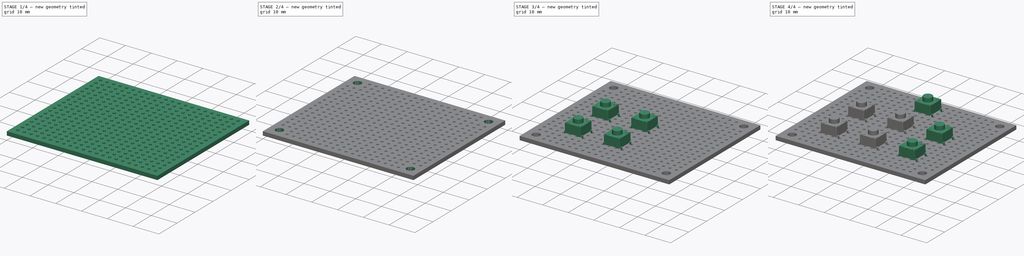
[diagram: build sequence overview — one tinted view per stage of 4, left to right]
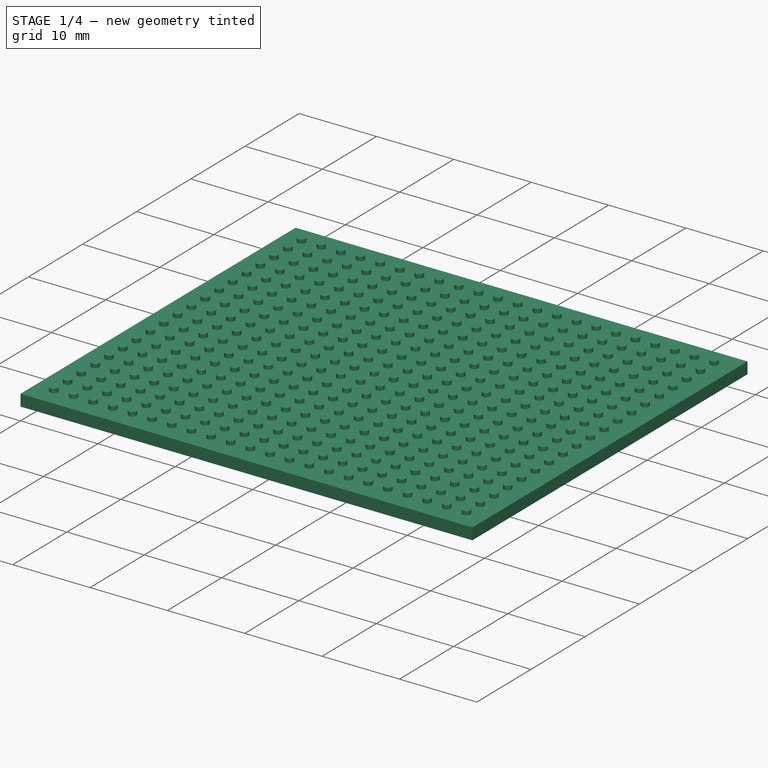
[diagram: stage 1 of 4 — iso view after this stage's code; geometry added in this stage tinted green]
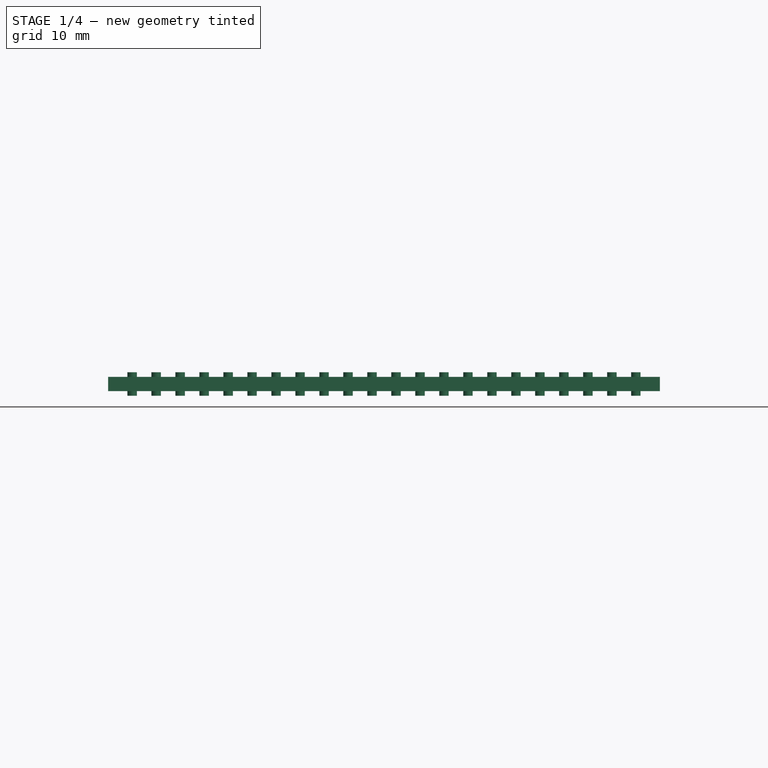
[diagram: stage 1 of 4 — front view after this stage's code; geometry added in this stage tinted green]
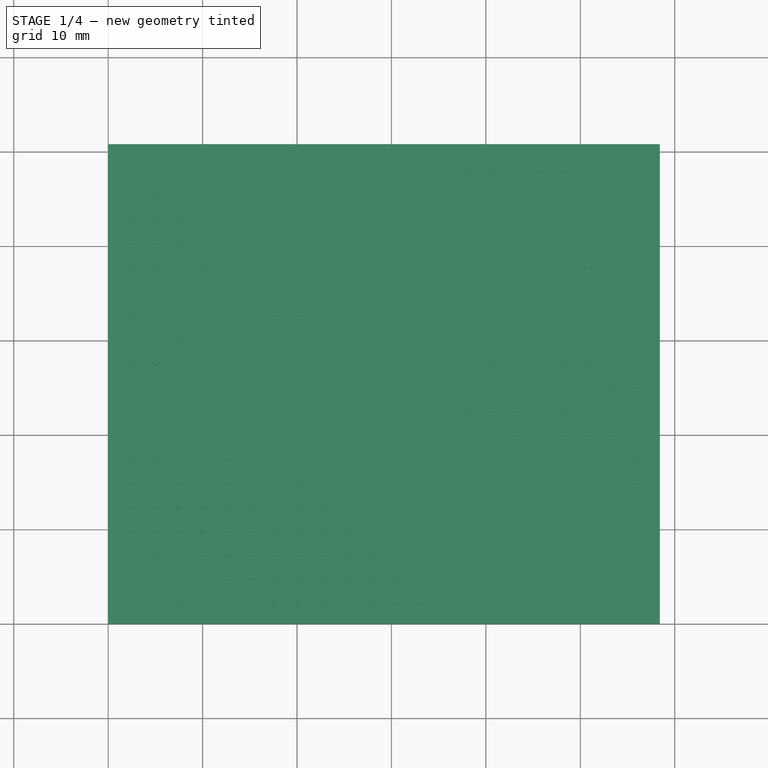
[diagram: stage 1 of 4 — top view after this stage's code; geometry added in this stage tinted green]
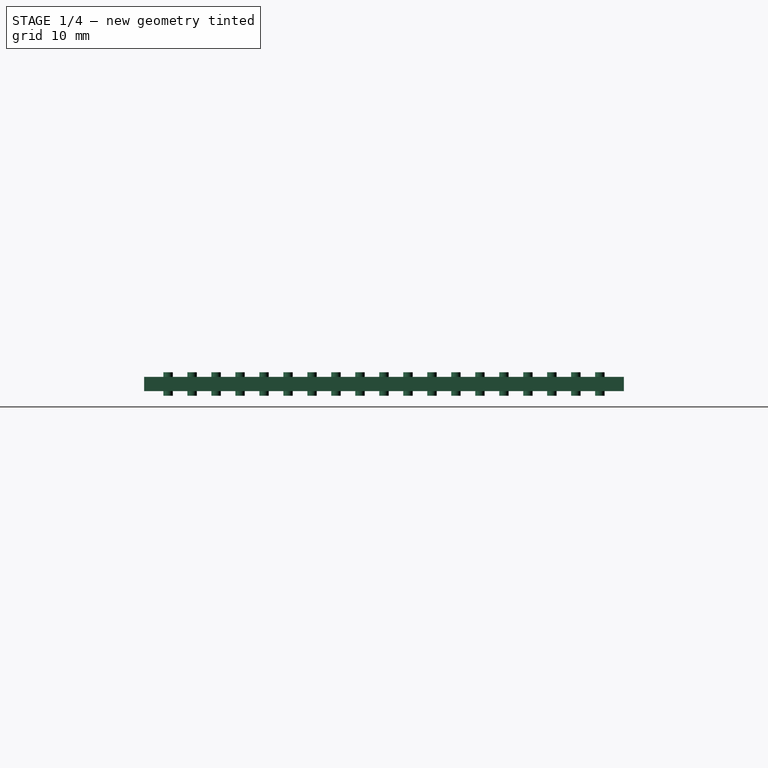
[diagram: stage 1 of 4 — right view after this stage's code; geometry added in this stage tinted green]
FCSTD DOCUMENT  (FreeCAD 0.14R3692 (Git))
Label: Keypad
License: CC-BY 3.0
LicenseURL: http://creativecommons.org/licenses/by/3.0/
objects: Part::Feature×7, Part::Compound×7, Sketcher::SketchObject×2, Part::Box×1, Part::Cylinder×1, Part::FeaturePython×1, Part::Cut×1, PartDesign::Pad×1, PartDesign::Pocket×1
note: 24 computed .brp shape members not serialized (recipe doc carries the construction recipe); baked Part::Feature solids carry a one-line shape summary decoded from their .brp

FEATURE [Part::Box] Box  label="BoardCube"
  Height = 1.5
  Length = 58.42
  Width = 50.8
FEATURE [Part::Cylinder] Cylinder  label="HoleCylinder"
  Angle = 360
  Height = 2.5
  Placement = pos=(2.54,2.54,-0.5) rot=(0,0,1;0rad)
  Radius = 0.5
FEATURE [Part::FeaturePython] Array  label="HoleArray"  # Draft array (typed FeaturePython)
  Angle = 360
  ArrayType = 0
  Axis = (0,0,1)
  Base = -> Cylinder
  Center = (0,0,0)
  IntervalX = (2.54,0,0)
  IntervalY = (0,2.54,0)
  IntervalZ = (0,0,1)
  NumberPolar = 1
  NumberX = 22
  NumberY = 19
  NumberZ = 1
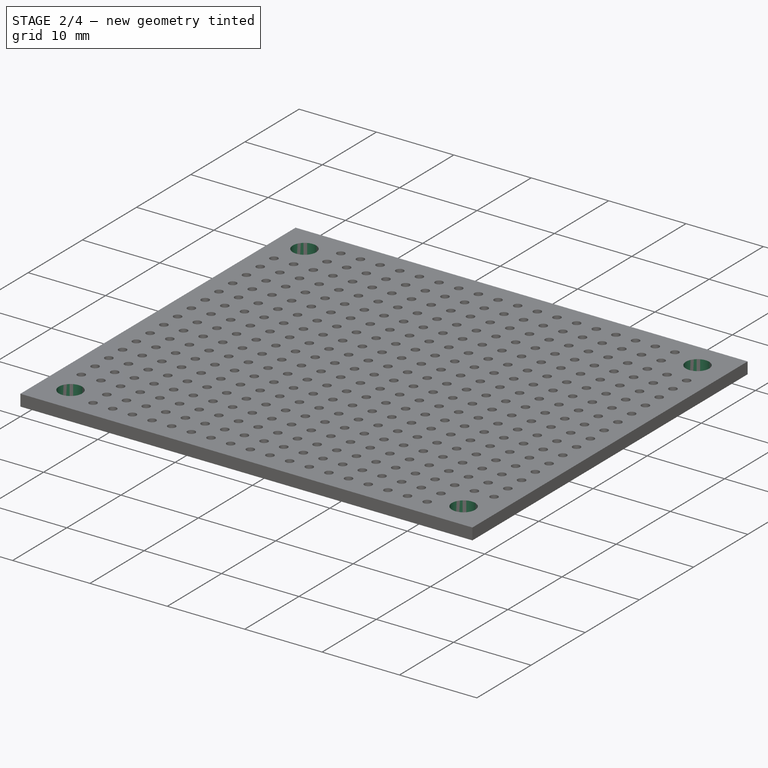
[diagram: stage 2 of 4 — iso view after this stage's code; geometry added in this stage tinted green]
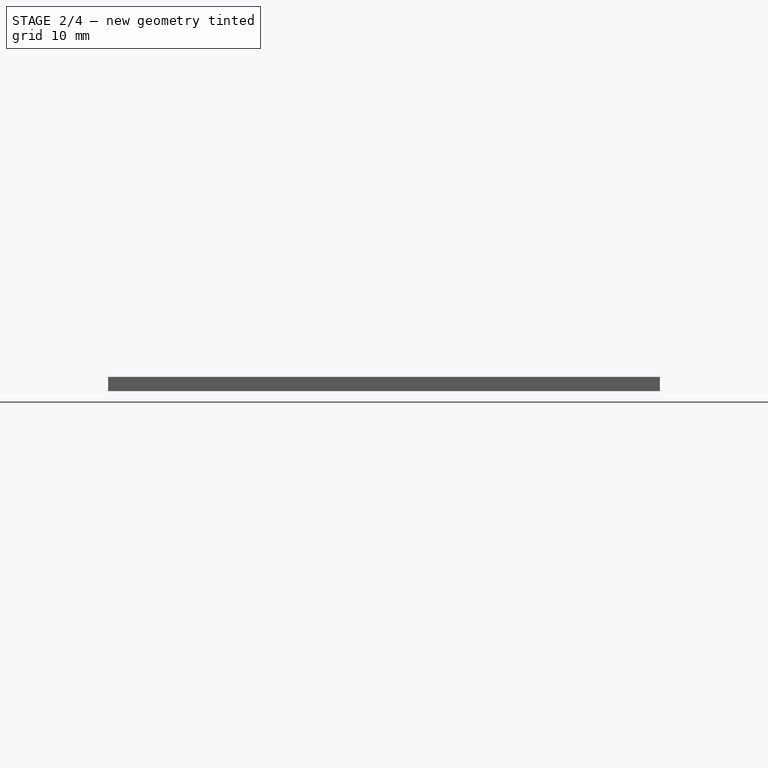
[diagram: stage 2 of 4 — front view after this stage's code; geometry added in this stage tinted green]
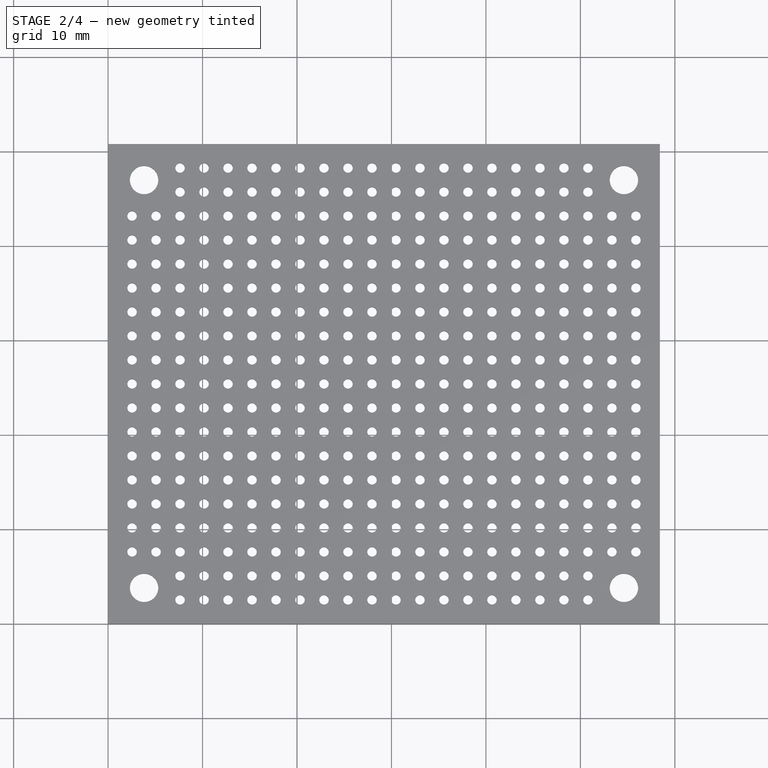
[diagram: stage 2 of 4 — top view after this stage's code; geometry added in this stage tinted green]
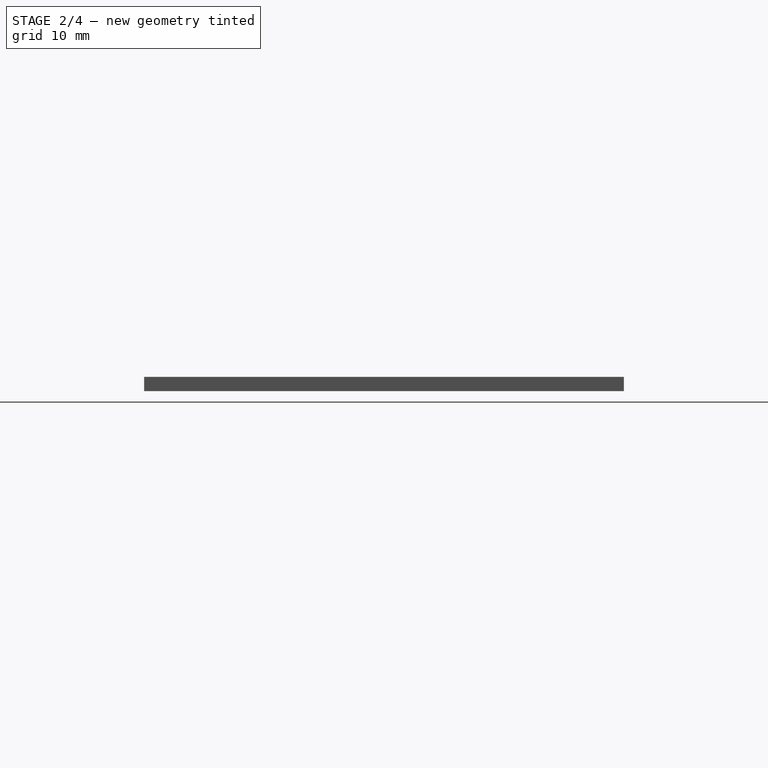
[diagram: stage 2 of 4 — right view after this stage's code; geometry added in this stage tinted green]
FEATURE [Part::Cut] Cut  label="BoardCut"
  Base = -> Box
  Tool = -> Array
FEATURE [Part::Feature] Part__Feature006  label="ConnectorFusion002"
  Placement = pos=(12.7,0,1.5) rot=(0,0,1;0rad)
  shape: bbox 7.62 x 13.65 x 9.1 mm, 63 faces (baked)
FEATURE [Sketcher::SketchObject] Sketch  label="CornerSketch"
  Placement = pos=(0,0,1.5) rot=(0,0,1;0rad)
  Support = -> Cut [Face3]
  sketch-geometry (16):
    g0: LineSegment StartX=1.27 StartY=6.35 StartZ=0 EndX=6.35 EndY=6.35 EndZ=0
    g1: LineSegment StartX=6.35 StartY=6.35 StartZ=0 EndX=6.35 EndY=1.27 EndZ=0
    g2: LineSegment StartX=6.35 StartY=1.27 StartZ=0 EndX=1.27 EndY=1.27 EndZ=0
    g3: LineSegment StartX=1.27 StartY=1.27 StartZ=0 EndX=1.27 EndY=6.35 EndZ=0
    g4: LineSegment StartX=1.27 StartY=49.53 StartZ=0 EndX=6.35 EndY=49.53 EndZ=0
    g5: LineSegment StartX=6.35 StartY=49.53 StartZ=0 EndX=6.35 EndY=44.45 EndZ=0
    g6: LineSegment StartX=6.35 StartY=44.45 StartZ=0 EndX=1.27 EndY=44.45 EndZ=0
    g7: LineSegment StartX=1.27 StartY=44.45 StartZ=0 EndX=1.27 EndY=49.53 EndZ=0
    g8: LineSegment StartX=57.15 StartY=1.27 StartZ=0 EndX=52.07 EndY=1.27 EndZ=0
    g9: LineSegment StartX=52.07 StartY=1.27 StartZ=0 EndX=52.07 EndY=6.35 EndZ=0
    g10: LineSegment StartX=52.07 StartY=6.35 StartZ=0 EndX=57.15 EndY=6.35 EndZ=0
    g11: LineSegment StartX=57.15 StartY=6.35 StartZ=0 EndX=57.15 EndY=1.27 EndZ=0
    g12: LineSegment StartX=52.07 StartY=49.53 StartZ=0 EndX=57.15 EndY=49.53 EndZ=0
    g13: LineSegment StartX=57.15 StartY=49.53 StartZ=0 EndX=57.15 EndY=44.45 EndZ=0
    g14: LineSegment StartX=57.15 StartY=44.45 StartZ=0 EndX=52.07 EndY=44.45 EndZ=0
    g15: LineSegment StartX=52.07 StartY=44.45 StartZ=0 EndX=52.07 EndY=49.53 EndZ=0
  constraints (48):
    c: Coincident(g0,g1)
    c: Coincident(g1,g2)
    c: Coincident(g2,g3)
    c: Coincident(g3,g0)
    c: Horizontal(g0)
    c: Horizontal(g2)
    c: Vertical(g1)
    c: Vertical(g3)
    c: DistanceX(g2) = -5.08
    c: Equal(g1,g2)
    c: DistanceX(g-1,g2) = 1.27
    c: DistanceY(g-1,g2) = 1.27
    c: Coincident(g4,g5)
    c: Coincident(g5,g6)
    c: Coincident(g6,g7)
    c: Coincident(g7,g4)
    c: Horizontal(g4)
    c: Horizontal(g6)
    c: Vertical(g5)
    c: Vertical(g7)
    c: Equal(g6,g5)
    c: Equal(g5,g2)
    c: DistanceX(g-1,g6) = 1.27
    c: DistanceY(g6,g0) = -38.1
    c: Coincident(g8,g9)
    c: Coincident(g9,g10)
    c: Coincident(g10,g11)
    c: Coincident(g11,g8)
    c: Horizontal(g8)
    c: Horizontal(g10)
    c: Vertical(g9)
    c: Vertical(g11)
    c: Equal(g8,g11)
    c: Equal(g11,g2)
    c: DistanceX(g8,g1) = -45.72
    c: DistanceY(g-1,g8) = 1.27
    c: Coincident(g12,g13)
    c: Coincident(g13,g14)
    c: Coincident(g14,g15)
    c: Coincident(g15,g12)
    c: Horizontal(g12)
    c: Horizontal(g14)
    c: Vertical(g13)
    c: Vertical(g15)
    c: Equal(g14,g13)
    c: Equal(g13,g2)
    c: DistanceX(g14,g5) = -45.72
    c: DistanceY(g14,g9) = -38.1
FEATURE [PartDesign::Pad] Pad  label="CornerPad"
  Length = 1.5
  Length2 = 100
  Reversed = true
  Sketch = -> Sketch
  Type = 0
FEATURE [Sketcher::SketchObject] Sketch001  label="CornerHolesSketch001"
  Placement = pos=(0,0,1.5) rot=(0,0,1;0rad)
  Support = -> Pad [Face5]
  sketch-geometry (4):
    g0: Circle CenterX=3.81 CenterY=3.81 CenterZ=0 NormalX=0 NormalY=0 NormalZ=1 Radius=1.5
    g1: Circle CenterX=54.61 CenterY=3.81 CenterZ=0 NormalX=0 NormalY=0 NormalZ=1 Radius=1.5
    g2: Circle CenterX=54.61 CenterY=46.99 CenterZ=0 NormalX=0 NormalY=0 NormalZ=1 Radius=1.5
    g3: Circle CenterX=3.81 CenterY=46.99 CenterZ=0 NormalX=0 NormalY=0 NormalZ=1 Radius=1.5
  constraints (12):
    c: Radius(g0) = 1.5
    c: DistanceX(g-1,g0) = 3.81
    c: DistanceY(g-1,g0) = 3.81
    c: Equal(g3,g2)
    c: Equal(g2,g1)
    c: Equal(g1,g0)
    c: DistanceX(g1,g0) = -50.8
    c: DistanceY(g1,g2) = 43.18
    c: DistanceX(g2,g3) = -50.8
    c: DistanceY(g0,g3) = 43.18
    c: DistanceX(g-1,g3) = 3.81
    c: DistanceY(g-1,g1) = 3.81
FEATURE [PartDesign::Pocket] Pocket  label="CornerHolesPocket"
  Length = 5
  Sketch = -> Sketch001
  Type = 0
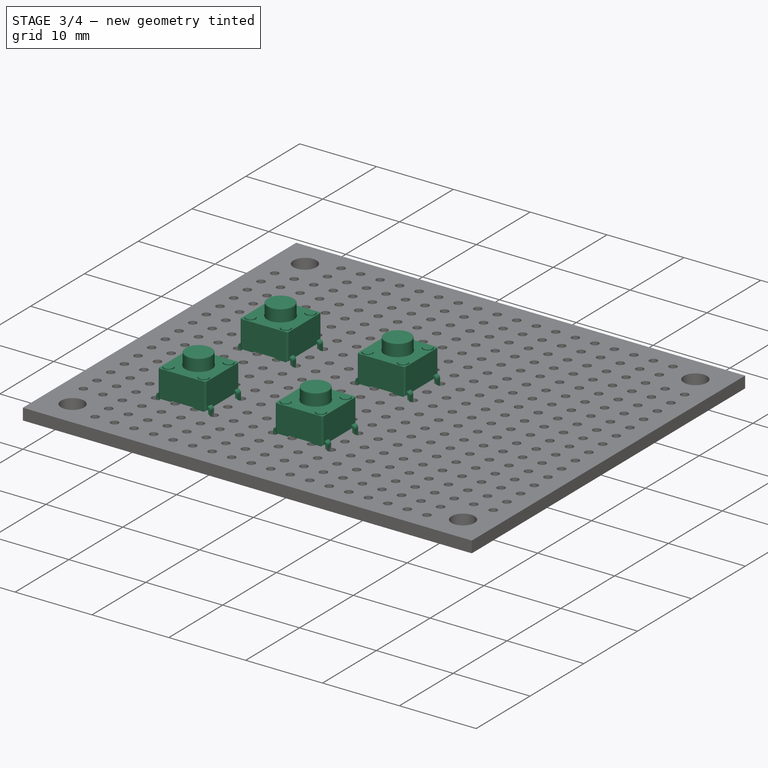
[diagram: stage 3 of 4 — iso view after this stage's code; geometry added in this stage tinted green]
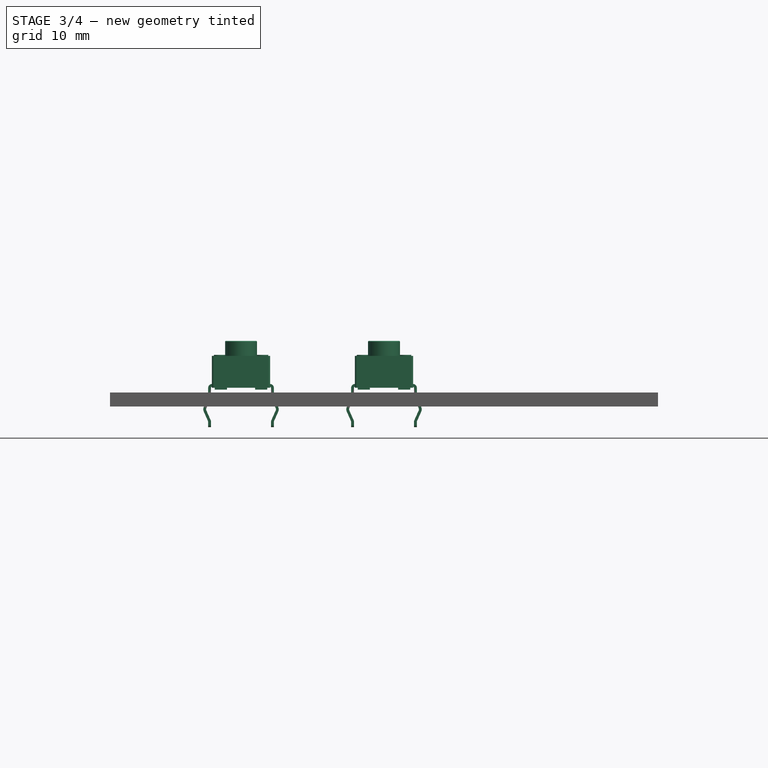
[diagram: stage 3 of 4 — front view after this stage's code; geometry added in this stage tinted green]
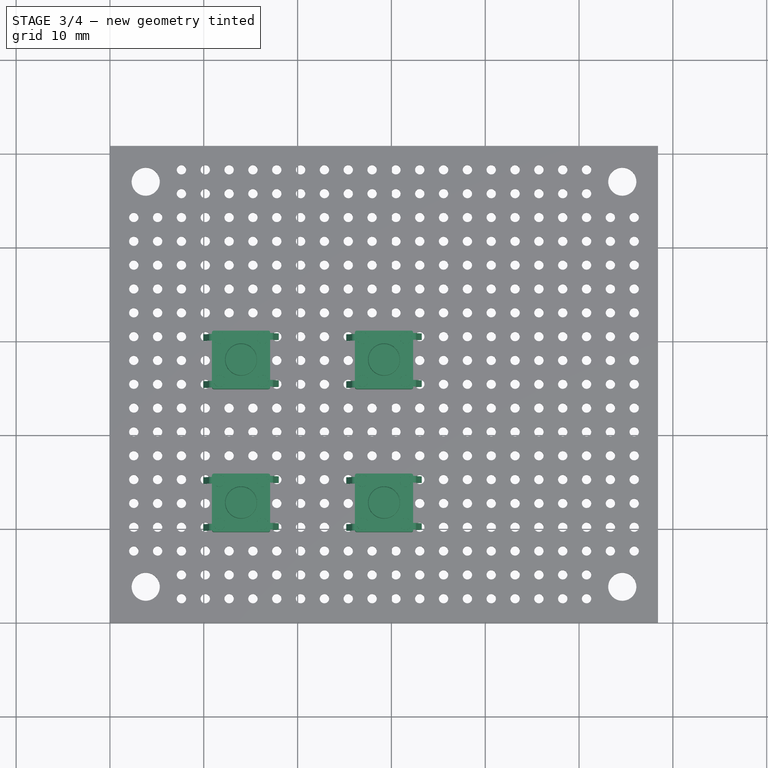
[diagram: stage 3 of 4 — top view after this stage's code; geometry added in this stage tinted green]
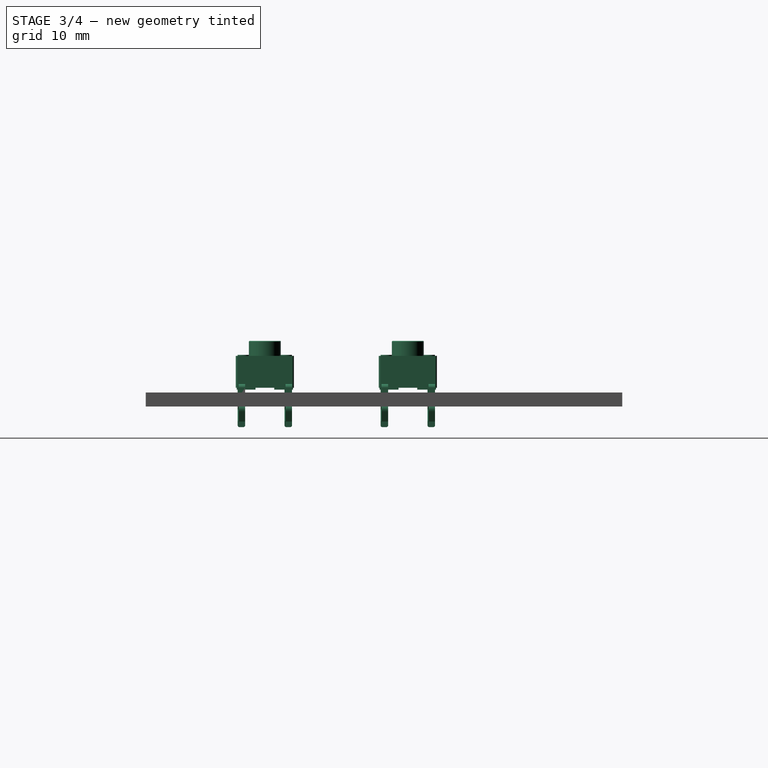
[diagram: stage 3 of 4 — right view after this stage's code; geometry added in this stage tinted green]
FEATURE [Part::Compound] Compound003  label="PushButton003"
  Links = -> [Part__Feature,Part__Feature001,Part__Feature005,Part__Feature004,Part__Feature003,Part__Feature002]
  Placement = pos=(13.97,27.94,2) rot=(0,0,1;0rad)
FEATURE [Part::Compound] Compound004  label="PushButton004"
  Links = -> [Part__Feature,Part__Feature001,Part__Feature005,Part__Feature004,Part__Feature003,Part__Feature002]
  Placement = pos=(29.21,12.7,2) rot=(0,0,1;0rad)
FEATURE [Part::Compound] Compound005  label="PushButton005"
  Links = -> [Part__Feature,Part__Feature001,Part__Feature005,Part__Feature004,Part__Feature003,Part__Feature002]
  Placement = pos=(29.21,27.94,2) rot=(0,0,1;0rad)
FEATURE [Part::Compound] Compound006  label="PushButton006"
  Links = -> [Part__Feature,Part__Feature001,Part__Feature005,Part__Feature004,Part__Feature003,Part__Feature002]
  Placement = pos=(13.97,12.7,2) rot=(0,0,1;0rad)
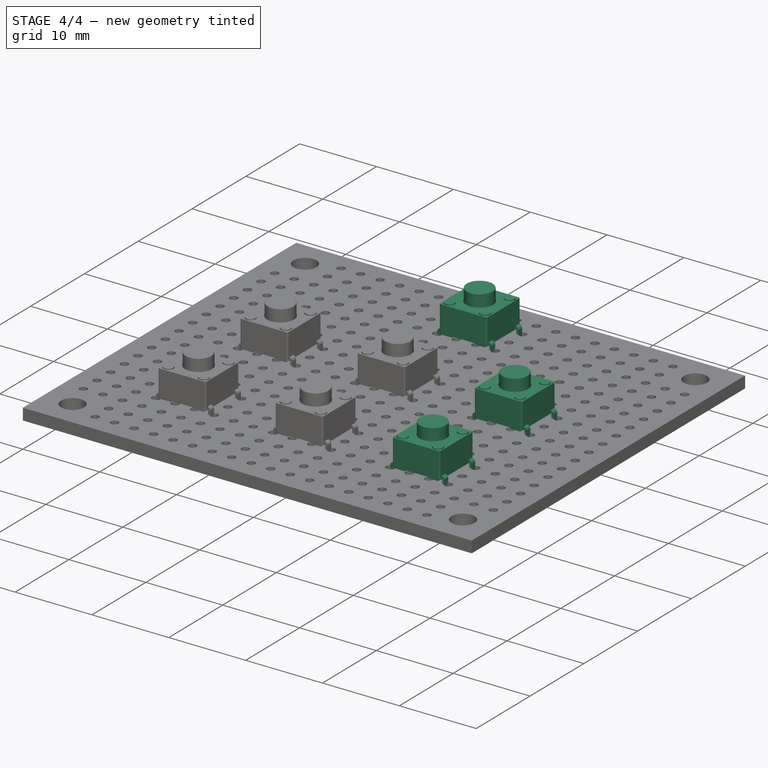
[diagram: stage 4 of 4 — iso view after this stage's code; geometry added in this stage tinted green]
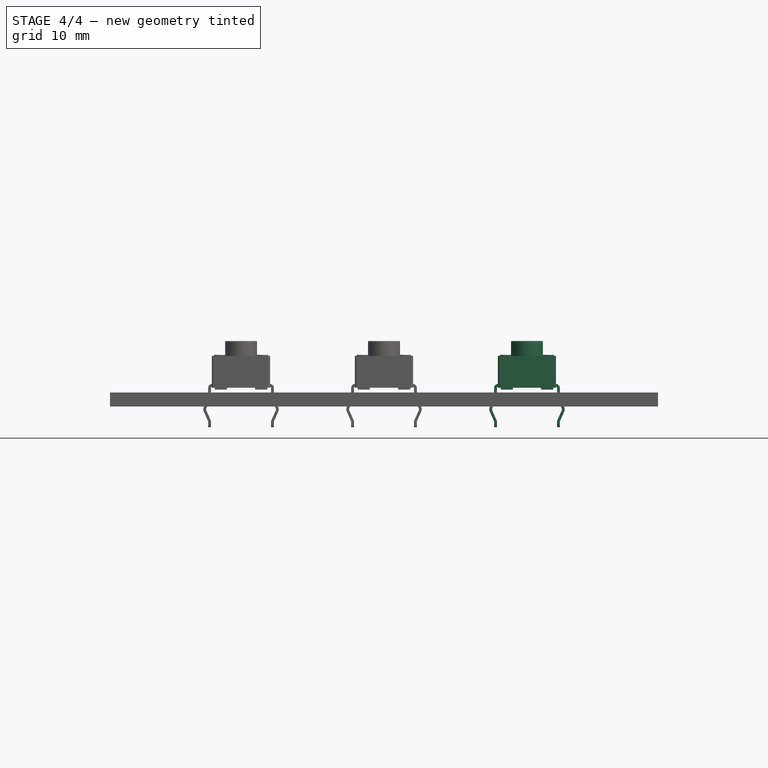
[diagram: stage 4 of 4 — front view after this stage's code; geometry added in this stage tinted green]
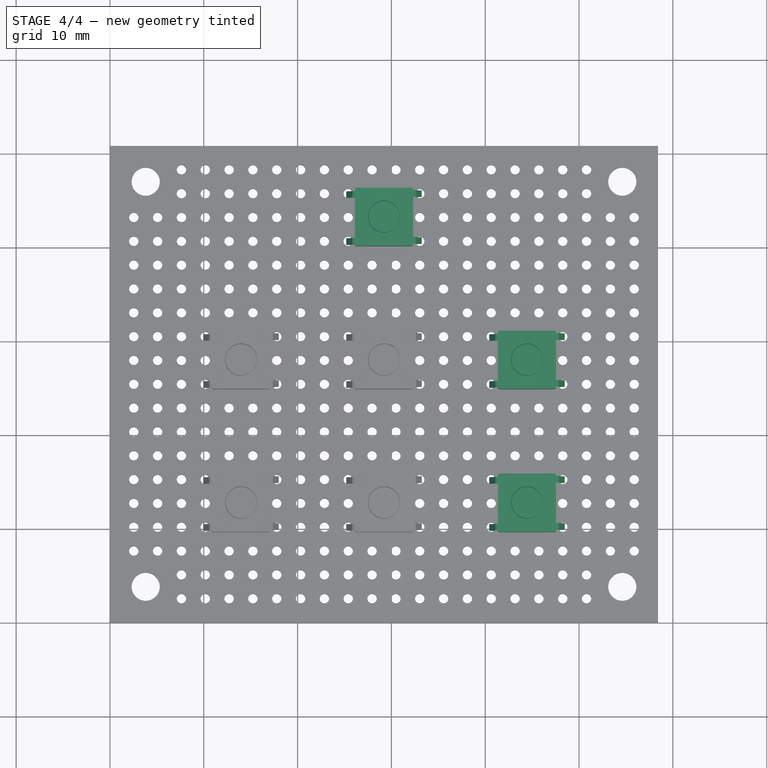
[diagram: stage 4 of 4 — top view after this stage's code; geometry added in this stage tinted green]
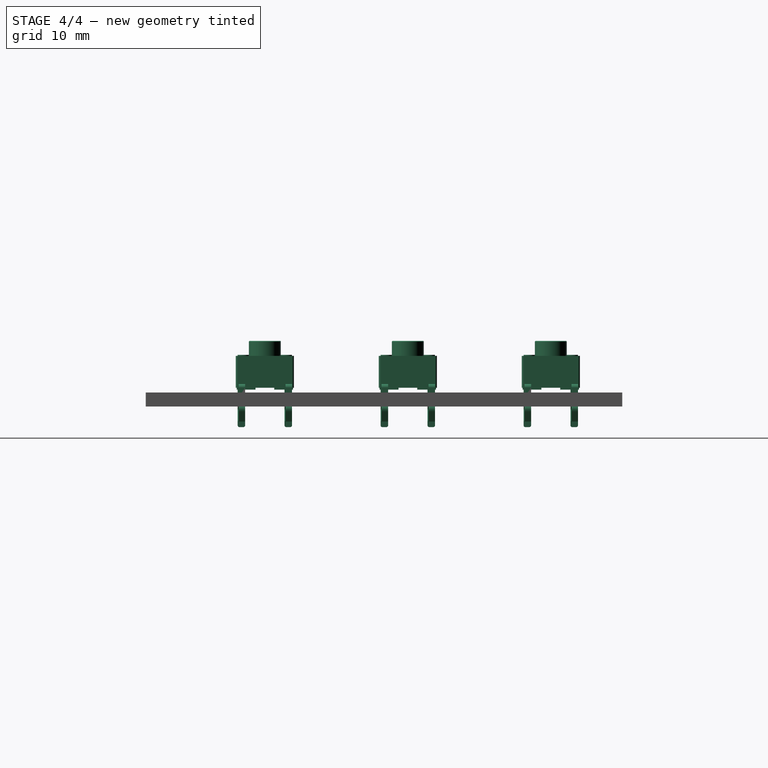
[diagram: stage 4 of 4 — right view after this stage's code; geometry added in this stage tinted green]
FEATURE [Part::Feature] Part__Feature  label="pushbutton-mini"
  shape: bbox 6.2 x 6.2 x 5.2 mm, 41 faces (baked)
FEATURE [Part::Feature] Part__Feature001  label="pushbutton-mini001"
  shape: bbox 0.922 x 0.7 x 4.6 mm, 20 faces (baked)
FEATURE [Part::Feature] Part__Feature002  label="pushbutton-mini002"
  shape: bbox 0.922 x 0.7 x 4.6 mm, 20 faces (baked)
FEATURE [Part::Feature] Part__Feature003  label="pushbutton-mini003"
  shape: bbox 0.922 x 0.7 x 4.6 mm, 20 faces (baked)
FEATURE [Part::Feature] Part__Feature004  label="pushbutton-mini004"
  shape: bbox 0.922 x 0.7 x 4.6 mm, 20 faces (baked)
FEATURE [Part::Feature] Part__Feature005  label="pushbutton-mini005"
  shape: bbox 6.2 x 6.2 x 0.2 mm, 15 faces (baked)
FEATURE [Part::Compound] Compound  label="PushButton"
  Links = -> [Part__Feature,Part__Feature001,Part__Feature005,Part__Feature004,Part__Feature003,Part__Feature002]
  Placement = pos=(44.45,12.7,2) rot=(0,0,1;0rad)
FEATURE [Part::Compound] Compound001  label="PushButton001"
  Links = -> [Part__Feature,Part__Feature001,Part__Feature005,Part__Feature004,Part__Feature003,Part__Feature002]
  Placement = pos=(44.45,27.94,2) rot=(0,0,1;0rad)
FEATURE [Part::Compound] Compound002  label="PushButton002"
  Links = -> [Part__Feature,Part__Feature001,Part__Feature005,Part__Feature004,Part__Feature003,Part__Feature002]
  Placement = pos=(29.21,43.18,2) rot=(0,0,1;0rad)
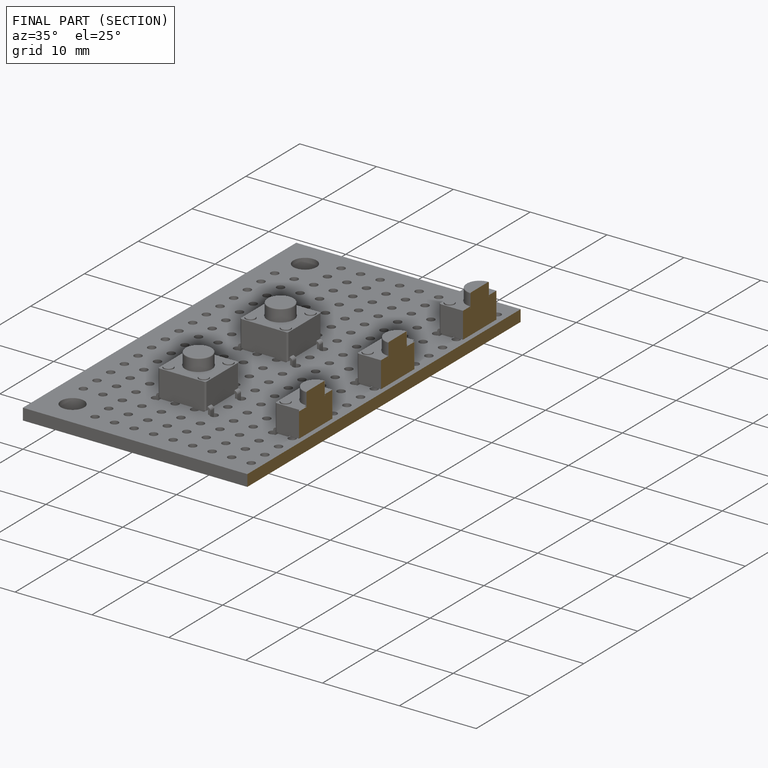
[diagram: finished part — half-section view (interior)]
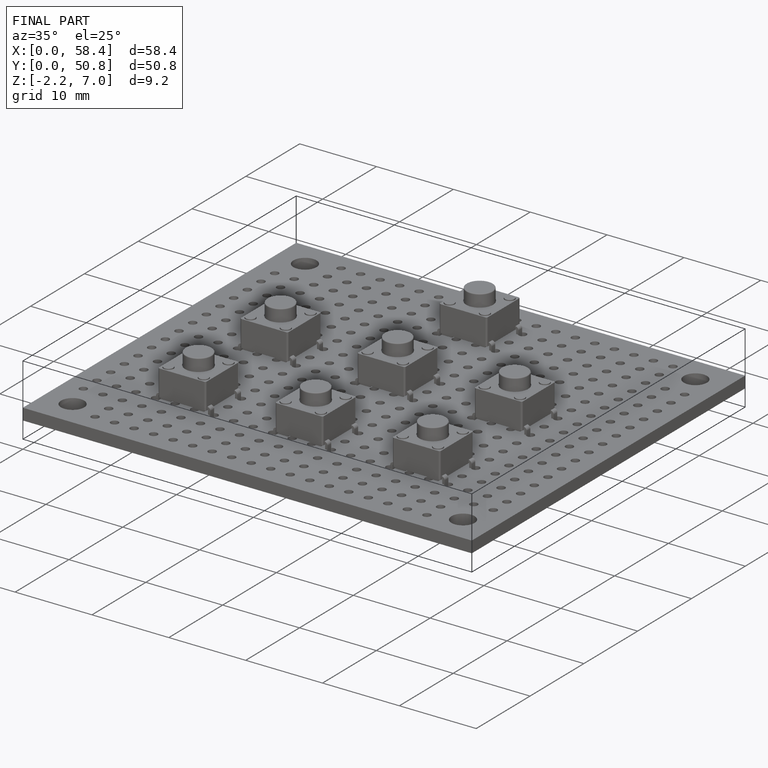
[diagram: finished part — iso view with bounding-box wireframe]
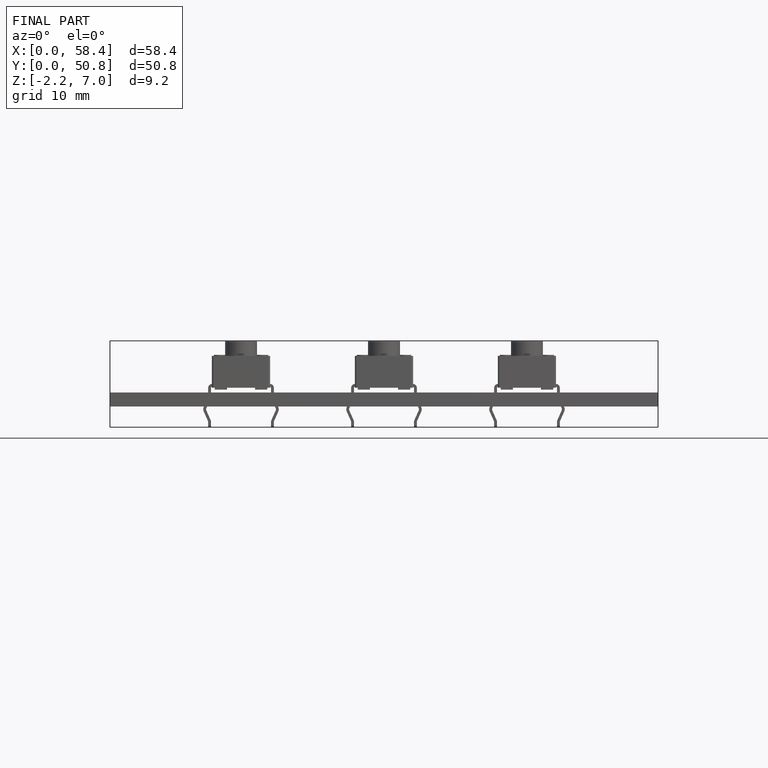
[diagram: finished part — front view with bounding-box wireframe]
